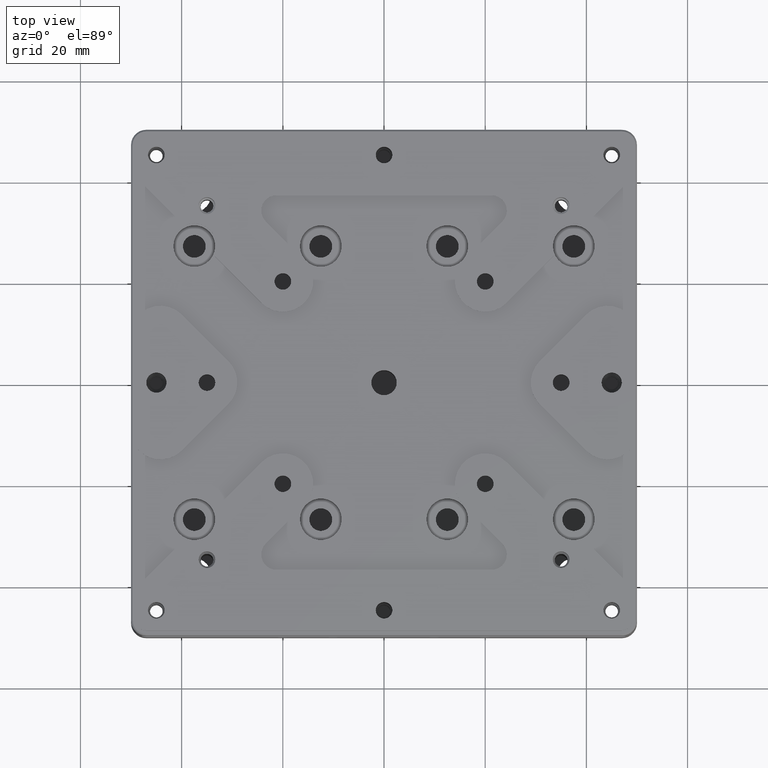
[diagram: clean part render]
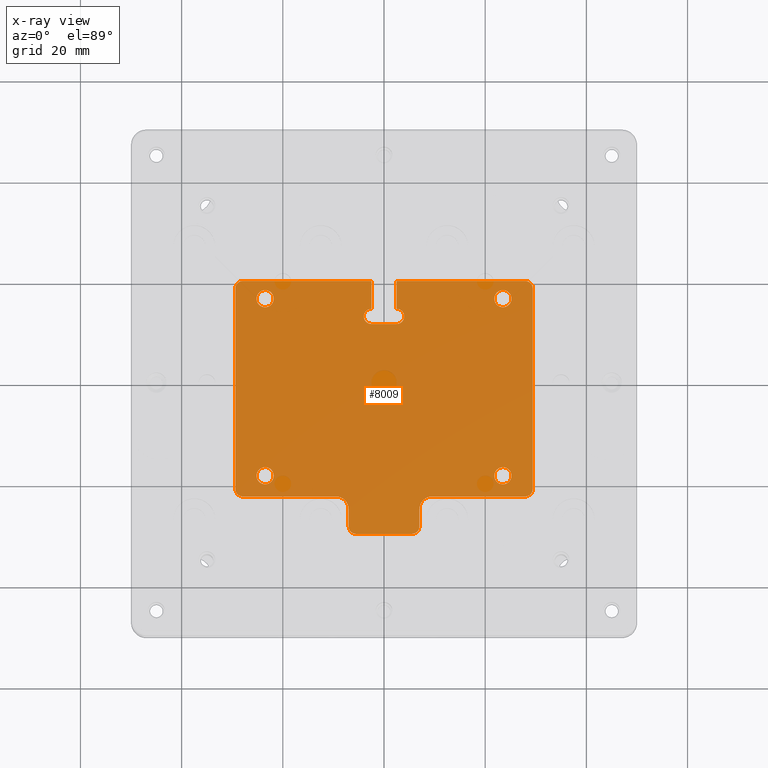
[diagram: x-ray — body ghosted, one internal face saturated and labeled with its STEP entity id]
A machine part, top view, then the same camera in x-ray: the body is ghosted and one INTERNAL B-rep face — a face not visible from any outside direction — is saturated and labeled: STEP entity #8009.
In plain terms, the highlighted planar face has unit normal (0, 0, -1).
Its self-contained STEP definition (entity closure, byte-faithful):
#79 = CARTESIAN_POINT ( 'NONE',  ( 6.999999999981446841, -24.60000000000000142, -8.299999999981446663 ) ) ;
#112 = EDGE_CURVE ( 'NONE', #6876, #781, #14528, .T. ) ;
#286 = CARTESIAN_POINT ( 'NONE',  ( -25.19999999999999929, -18.00000000000000355, -8.300000000000000711 ) ) ;
#388 = CARTESIAN_POINT ( 'NONE',  ( -2.500000000000000000, 13.50000000000000000, -8.300000000000000711 ) ) ;
#494 = DIRECTION ( 'NONE',  ( 1.000000000000000000, 0.000000000000000000, 0.000000000000000000 ) ) ;
#499 = ORIENTED_EDGE ( 'NONE', *, *, #7242, .F. ) ;
#528 = CIRCLE ( 'NONE', #8694, 1.700000000000000178 ) ;
#547 = CARTESIAN_POINT ( 'NONE',  ( 21.80000000000000071, -18.00000000000000355, -8.300000000000000711 ) ) ;
#628 = EDGE_LOOP ( 'NONE', ( #13713, #8756, #6700, #13582, #14121, #10174, #14075, #499, #6242, #8697, #4047, #5148, #10980, #4549, #1013, #16148, #15802, #1430, #13426, #14940, #13183, #3896 ) ) ;
#684 = CARTESIAN_POINT ( 'NONE',  ( 5.500000000000000000, -28.00000000000000000, -8.299999998314433469 ) ) ;
#716 = DIRECTION ( 'NONE',  ( -0.000000000000000000, -0.000000000000000000, 1.000000000000000000 ) ) ;
#718 = CARTESIAN_POINT ( 'NONE',  ( 29.39999999918731888, -20.59999999565999929, -8.299999998371276888 ) ) ;
#752 = VERTEX_POINT ( 'NONE', #3991 ) ;
#781 = VERTEX_POINT ( 'NONE', #1741 ) ;
#806 = CIRCLE ( 'NONE', #2114, 1.499999998336078777 ) ;
#822 = DIRECTION ( 'NONE',  ( 0.000000000000000000, 0.000000000000000000, -1.000000000000000000 ) ) ;
#872 = CARTESIAN_POINT ( 'NONE',  ( 23.50000000000000000, 17.00000000000000000, -8.300000000000000711 ) ) ;
#895 = LINE ( 'NONE', #4949, #15973 ) ;
#935 = DIRECTION ( 'NONE',  ( 0.000000000000000000, 0.000000000000000000, 1.000000000000000000 ) ) ;
#1013 = ORIENTED_EDGE ( 'NONE', *, *, #6994, .F. ) ;
#1027 = VECTOR ( 'NONE', #7517, 1000.000000000000000 ) ;
#1063 = DIRECTION ( 'NONE',  ( -1.000000000000000000, 0.000000000000000000, 0.000000000000000000 ) ) ;
#1139 = DIRECTION ( 'NONE',  ( -0.000000000000000000, -1.000000000000000000, -0.000000000000000000 ) ) ;
#1197 = CARTESIAN_POINT ( 'NONE',  ( 0.000000000000000000, 0.000000000000000000, -8.300000000000000711 ) ) ;
#1230 = ORIENTED_EDGE ( 'NONE', *, *, #6702, .F. ) ;
#1241 = CARTESIAN_POINT ( 'NONE',  ( 0.000000000000000000, -22.09999999840000129, -8.300000000000000711 ) ) ;
#1256 = AXIS2_PLACEMENT_3D ( 'NONE', #1197, #2274, #14775 ) ;
#1287 = VERTEX_POINT ( 'NONE', #2965 ) ;
#1295 = DIRECTION ( 'NONE',  ( 0.000000000000000000, -1.000000000000000000, -0.000000000000000000 ) ) ;
#1376 = DIRECTION ( 'NONE',  ( 1.000000000000000000, 0.000000000000000000, 0.000000000000000000 ) ) ;
#1430 = ORIENTED_EDGE ( 'NONE', *, *, #1790, .F. ) ;
#1447 = EDGE_CURVE ( 'NONE', #9719, #6866, #12214, .T. ) ;
#1465 = CARTESIAN_POINT ( 'NONE',  ( 0.000000000000000000, -22.10000000000000142, -8.300000000000000711 ) ) ;
#1481 = VECTOR ( 'NONE', #1295, 1000.000000000000000 ) ;
#1556 = VECTOR ( 'NONE', #7038, 1000.000000000000000 ) ;
#1575 = VERTEX_POINT ( 'NONE', #8907 ) ;
#1599 = EDGE_LOOP ( 'NONE', ( #5381 ) ) ;
#1614 = EDGE_CURVE ( 'NONE', #12957, #1575, #9670, .T. ) ;
#1658 = EDGE_CURVE ( 'NONE', #5837, #12142, #5354, .T. ) ;
#1728 = EDGE_CURVE ( 'NONE', #2789, #2789, #11784, .T. ) ;
#1741 = CARTESIAN_POINT ( 'NONE',  ( -7.000000001917206838, -24.59999998012499844, -8.300000002673368016 ) ) ;
#1777 = CARTESIAN_POINT ( 'NONE',  ( 21.80000000000000071, 17.00000000000000000, -8.300000000000000711 ) ) ;
#1790 = EDGE_CURVE ( 'NONE', #8691, #9719, #11798, .T. ) ;
#1933 = DIRECTION ( 'NONE',  ( 0.000000000000000000, 1.000000000000000000, 0.000000000000000000 ) ) ;
#1934 = VERTEX_POINT ( 'NONE', #4981 ) ;
#2012 = VECTOR ( 'NONE', #12542, 1000.000000000000000 ) ;
#2114 = AXIS2_PLACEMENT_3D ( 'NONE', #684, #5724, #14341 ) ;
#2224 = DIRECTION ( 'NONE',  ( -1.000000000000000000, 0.000000000000000000, -0.000000000000000000 ) ) ;
#2249 = CARTESIAN_POINT ( 'NONE',  ( -29.39999999925992213, -20.60000000000000142, -8.299999999261627792 ) ) ;
#2274 = DIRECTION ( 'NONE',  ( 0.000000000000000000, 0.000000000000000000, -1.000000000000000000 ) ) ;
#2297 = CARTESIAN_POINT ( 'NONE',  ( -5.500000000000000000, -28.00000000000000000, -8.300000000056570570 ) ) ;
#2313 = LINE ( 'NONE', #8518, #4934 ) ;
#2324 = VERTEX_POINT ( 'NONE', #79 ) ;
#2542 = LINE ( 'NONE', #1465, #9642 ) ;
#2688 = VERTEX_POINT ( 'NONE', #1777 ) ;
#2742 = VERTEX_POINT ( 'NONE', #286 ) ;
#2789 = VERTEX_POINT ( 'NONE', #5445 ) ;
#2862 = ORIENTED_EDGE ( 'NONE', *, *, #1728, .F. ) ;
#2872 = CARTESIAN_POINT ( 'NONE',  ( -23.50000000000000000, -18.00000000000000355, -8.300000000000000711 ) ) ;
#2949 = DIRECTION ( 'NONE',  ( 1.000000000000000000, 0.000000000000000000, 0.000000000000000000 ) ) ;
#2965 = CARTESIAN_POINT ( 'NONE',  ( -27.89999999999999858, 20.49999999916474280, -8.299999999204784373 ) ) ;
#3065 = AXIS2_PLACEMENT_3D ( 'NONE', #12345, #5734, #15828 ) ;
#3188 = CARTESIAN_POINT ( 'NONE',  ( -6.999999998396000400, 0.000000000000000000, -8.300000000000000711 ) ) ;
#3295 = VERTEX_POINT ( 'NONE', #8931 ) ;
#3309 = CIRCLE ( 'NONE', #8857, 1.700000000000000178 ) ;
#3368 = EDGE_CURVE ( 'NONE', #12142, #8452, #8787, .T. ) ;
#3377 = EDGE_CURVE ( 'NONE', #752, #2324, #4043, .T. ) ;
#3473 = EDGE_CURVE ( 'NONE', #5986, #1287, #3643, .T. ) ;
#3510 = DIRECTION ( 'NONE',  ( -0.000000000000000000, -0.000000000000000000, 1.000000000000000000 ) ) ;
#3526 = DIRECTION ( 'NONE',  ( -1.000000000000000000, 0.000000000000000000, 0.000000000000000000 ) ) ;
#3617 = CARTESIAN_POINT ( 'NONE',  ( -27.89999999999999858, 19.00000000000000000, -8.299999998371276888 ) ) ;
#3643 = CIRCLE ( 'NONE', #10778, 1.499999998310613147 ) ;
#3854 = VERTEX_POINT ( 'NONE', #13207 ) ;
#3896 = ORIENTED_EDGE ( 'NONE', *, *, #11252, .F. ) ;
#3950 = CARTESIAN_POINT ( 'NONE',  ( 29.39999999999999858, -0.8000000000000000444, -8.300000000000000711 ) ) ;
#3991 = CARTESIAN_POINT ( 'NONE',  ( 9.499999999999998224, -22.09999999917271651, -8.299999999962892616 ) ) ;
#4043 = CIRCLE ( 'NONE', #13553, 2.500000000018553159 ) ;
#4047 = ORIENTED_EDGE ( 'NONE', *, *, #3377, .F. ) ;
#4127 = CIRCLE ( 'NONE', #14423, 1.499999998374641708 ) ;
#4203 = DIRECTION ( 'NONE',  ( -0.000000000000000000, -0.000000000000000000, 1.000000000000000000 ) ) ;
#4374 = DIRECTION ( 'NONE',  ( 0.000000000000000000, 0.000000000000000000, -1.000000000000000000 ) ) ;
#4549 = ORIENTED_EDGE ( 'NONE', *, *, #1658, .F. ) ;
#4753 = EDGE_CURVE ( 'NONE', #12633, #12957, #895, .T. ) ;
#4792 = DIRECTION ( 'NONE',  ( -0.000000000000000000, -1.000000000000000000, -0.000000000000000000 ) ) ;
#4816 = DIRECTION ( 'NONE',  ( 1.000000000000000000, 0.000000000000000000, 0.000000000000000000 ) ) ;
#4867 = VERTEX_POINT ( 'NONE', #8583 ) ;
#4872 = CARTESIAN_POINT ( 'NONE',  ( 0.000000000000000000, 20.50000000000000000, -8.300000000000000711 ) ) ;
#4934 = VECTOR ( 'NONE', #2224, 1000.000000000000000 ) ;
#4949 = CARTESIAN_POINT ( 'NONE',  ( -2.500000000000000000, 0.000000000000000000, -8.300000000000000711 ) ) ;
#4981 = CARTESIAN_POINT ( 'NONE',  ( 6.999999999182000998, -27.99999999566000142, -8.299999999157217090 ) ) ;
#5148 = ORIENTED_EDGE ( 'NONE', *, *, #10310, .F. ) ;
#5245 = AXIS2_PLACEMENT_3D ( 'NONE', #6916, #14989, #4816 ) ;
#5354 = LINE ( 'NONE', #3950, #1481 ) ;
#5381 = ORIENTED_EDGE ( 'NONE', *, *, #6776, .F. ) ;
#5445 = CARTESIAN_POINT ( 'NONE',  ( -25.19999999999999929, 17.00000000000000000, -8.300000000000000711 ) ) ;
#5724 = DIRECTION ( 'NONE',  ( 0.000000000000000000, 0.000000000000000000, -1.000000000000000000 ) ) ;
#5734 = DIRECTION ( 'NONE',  ( -0.000000000000000000, -0.000000000000000000, 1.000000000000000000 ) ) ;
#5753 = DIRECTION ( 'NONE',  ( -1.000000000000000000, 0.000000000000000000, 0.000000000000000000 ) ) ;
#5759 = FACE_BOUND ( 'NONE', #15581, .T. ) ;
#5837 = VERTEX_POINT ( 'NONE', #8711 ) ;
#5879 = CARTESIAN_POINT ( 'NONE',  ( -29.39999999915530182, 18.99999999565999786, -8.299999998371276888 ) ) ;
#5986 = VERTEX_POINT ( 'NONE', #5879 ) ;
#6002 = CARTESIAN_POINT ( 'NONE',  ( -6.999999999226285574, -28.00000000467500172, -8.300000000056570570 ) ) ;
#6030 = CARTESIAN_POINT ( 'NONE',  ( 7.000000000000000000, 0.000000000000000000, -8.300000000000000711 ) ) ;
#6066 = CARTESIAN_POINT ( 'NONE',  ( -2.499999999999998224, 20.50000000000000000, -8.300000000000000711 ) ) ;
#6230 = AXIS2_PLACEMENT_3D ( 'NONE', #388, #7671, #1376 ) ;
#6242 = ORIENTED_EDGE ( 'NONE', *, *, #10043, .F. ) ;
#6246 = AXIS2_PLACEMENT_3D ( 'NONE', #872, #3510, #13606 ) ;
#6271 = DIRECTION ( 'NONE',  ( -1.000000000000000000, 0.000000000000000000, 0.000000000000000000 ) ) ;
#6277 = CIRCLE ( 'NONE', #5245, 2.500000000054569682 ) ;
#6278 = EDGE_LOOP ( 'NONE', ( #12760 ) ) ;
#6376 = LINE ( 'NONE', #1241, #10838 ) ;
#6437 = EDGE_CURVE ( 'NONE', #15128, #15880, #4127, .T. ) ;
#6700 = ORIENTED_EDGE ( 'NONE', *, *, #6437, .F. ) ;
#6702 = EDGE_CURVE ( 'NONE', #10547, #10547, #3309, .T. ) ;
#6776 = EDGE_CURVE ( 'NONE', #2688, #2688, #13373, .T. ) ;
#6866 = VERTEX_POINT ( 'NONE', #11199 ) ;
#6876 = VERTEX_POINT ( 'NONE', #6002 ) ;
#6909 = CARTESIAN_POINT ( 'NONE',  ( -29.39999999999999858, -0.8000000000000000444, -8.300000000000000711 ) ) ;
#6916 = CARTESIAN_POINT ( 'NONE',  ( -9.500000000000000000, -24.60000000000000142, -8.299999999926876981 ) ) ;
#6994 = EDGE_CURVE ( 'NONE', #16061, #5837, #12849, .T. ) ;
#7038 = DIRECTION ( 'NONE',  ( 1.000000000000000000, -0.000000000000000000, 0.000000000000000000 ) ) ;
#7065 = CARTESIAN_POINT ( 'NONE',  ( 27.89999999999999858, -22.09999999838731810, -8.299999998371276888 ) ) ;
#7242 = EDGE_CURVE ( 'NONE', #3854, #4867, #2313, .T. ) ;
#7433 = LINE ( 'NONE', #6030, #14805 ) ;
#7441 = LINE ( 'NONE', #8761, #1027 ) ;
#7517 = DIRECTION ( 'NONE',  ( 1.000000000000000000, -0.000000000000000000, 0.000000000000000000 ) ) ;
#7671 = DIRECTION ( 'NONE',  ( 0.000000000000000000, 0.000000000000000000, 1.000000000000000000 ) ) ;
#7726 = EDGE_CURVE ( 'NONE', #4867, #6876, #8902, .T. ) ;
#7882 = DIRECTION ( 'NONE',  ( -1.000000000000000000, 0.000000000000000000, 0.000000000000000000 ) ) ;
#7944 = DIRECTION ( 'NONE',  ( 0.000000000000000000, 0.000000000000000000, 1.000000000000000000 ) ) ;
#8009 = ADVANCED_FACE ( 'NONE', ( #11957, #5759, #10724, #10807, #9561 ), #14612, .F. ) ;
#8115 = AXIS2_PLACEMENT_3D ( 'NONE', #2297, #16038, #6271 ) ;
#8431 = VECTOR ( 'NONE', #11944, 1000.000000000000000 ) ;
#8452 = VERTEX_POINT ( 'NONE', #7065 ) ;
#8518 = CARTESIAN_POINT ( 'NONE',  ( 0.000000000000000000, -29.49999999839999987, -8.300000000000000711 ) ) ;
#8583 = CARTESIAN_POINT ( 'NONE',  ( -5.500000000000000000, -29.49999999923910821, -8.300000000056570570 ) ) ;
#8691 = VERTEX_POINT ( 'NONE', #11764 ) ;
#8694 = AXIS2_PLACEMENT_3D ( 'NONE', #2872, #4203, #15441 ) ;
#8697 = ORIENTED_EDGE ( 'NONE', *, *, #8949, .F. ) ;
#8711 = CARTESIAN_POINT ( 'NONE',  ( 29.39999999924571128, 19.00000000000000355, -8.299999999318471211 ) ) ;
#8756 = ORIENTED_EDGE ( 'NONE', *, *, #9605, .F. ) ;
#8761 = CARTESIAN_POINT ( 'NONE',  ( 0.000000000000000000, 12.00000000000000000, -8.300000000000000711 ) ) ;
#8787 = CIRCLE ( 'NONE', #10909, 1.499999998374641708 ) ;
#8857 = AXIS2_PLACEMENT_3D ( 'NONE', #14365, #716, #5753 ) ;
#8902 = CIRCLE ( 'NONE', #8115, 1.500000000021373125 ) ;
#8907 = CARTESIAN_POINT ( 'NONE',  ( -2.500000000000000000, 12.00000000000000000, -8.300000000000000711 ) ) ;
#8931 = CARTESIAN_POINT ( 'NONE',  ( -9.499999999999996447, -22.09999999996344044, -8.299999999963437958 ) ) ;
#8949 = EDGE_CURVE ( 'NONE', #2324, #1934, #7433, .T. ) ;
#8950 = CARTESIAN_POINT ( 'NONE',  ( 27.89999999999999858, 19.00000000000000000, -8.299999998484963726 ) ) ;
#9035 = CARTESIAN_POINT ( 'NONE',  ( 27.90000000467499675, 20.49999999919999993, -8.299999999242482218 ) ) ;
#9115 = DIRECTION ( 'NONE',  ( 0.000000000000000000, 0.000000000000000000, -1.000000000000000000 ) ) ;
#9232 = LINE ( 'NONE', #6909, #13494 ) ;
#9244 = CARTESIAN_POINT ( 'NONE',  ( 2.500000000000000000, 13.50000000000000000, -8.300000000000000711 ) ) ;
#9549 = LINE ( 'NONE', #14600, #8431 ) ;
#9561 = FACE_OUTER_BOUND ( 'NONE', #628, .T. ) ;
#9605 = EDGE_CURVE ( 'NONE', #15880, #5986, #9232, .T. ) ;
#9642 = VECTOR ( 'NONE', #12553, 1000.000000000000000 ) ;
#9670 = CIRCLE ( 'NONE', #6230, 1.500000000000000000 ) ;
#9675 = EDGE_CURVE ( 'NONE', #6866, #16061, #9549, .T. ) ;
#9719 = VERTEX_POINT ( 'NONE', #12190 ) ;
#9949 = AXIS2_PLACEMENT_3D ( 'NONE', #9244, #935, #2949 ) ;
#10043 = EDGE_CURVE ( 'NONE', #1934, #3854, #806, .T. ) ;
#10174 = ORIENTED_EDGE ( 'NONE', *, *, #112, .F. ) ;
#10310 = EDGE_CURVE ( 'NONE', #8452, #752, #6376, .T. ) ;
#10547 = VERTEX_POINT ( 'NONE', #547 ) ;
#10548 = DIRECTION ( 'NONE',  ( 0.000000000000000000, 1.000000000000000000, -0.000000000000000000 ) ) ;
#10652 = CARTESIAN_POINT ( 'NONE',  ( 27.89999999999999858, -20.60000000000000142, -8.299999998371276888 ) ) ;
#10724 = FACE_BOUND ( 'NONE', #6278, .T. ) ;
#10778 = AXIS2_PLACEMENT_3D ( 'NONE', #3617, #822, #1063 ) ;
#10801 = EDGE_CURVE ( 'NONE', #781, #3295, #6277, .T. ) ;
#10807 = FACE_BOUND ( 'NONE', #1599, .T. ) ;
#10838 = VECTOR ( 'NONE', #16309, 1000.000000000000000 ) ;
#10909 = AXIS2_PLACEMENT_3D ( 'NONE', #10652, #4374, #15789 ) ;
#10980 = ORIENTED_EDGE ( 'NONE', *, *, #3368, .F. ) ;
#11021 = EDGE_LOOP ( 'NONE', ( #1230 ) ) ;
#11199 = CARTESIAN_POINT ( 'NONE',  ( 2.499999999999998224, 20.50000000000000000, -8.300000000000000711 ) ) ;
#11252 = EDGE_CURVE ( 'NONE', #1287, #12633, #12236, .T. ) ;
#11486 = EDGE_CURVE ( 'NONE', #1575, #8691, #7441, .T. ) ;
#11764 = CARTESIAN_POINT ( 'NONE',  ( 2.499999999999999556, 12.00000000000000000, -8.300000000000000711 ) ) ;
#11784 = CIRCLE ( 'NONE', #3065, 1.700000000000000178 ) ;
#11798 = CIRCLE ( 'NONE', #9949, 1.500000000000000000 ) ;
#11944 = DIRECTION ( 'NONE',  ( 1.000000000000000000, -0.000000000000000000, 0.000000000000000000 ) ) ;
#11957 = FACE_BOUND ( 'NONE', #11021, .T. ) ;
#11970 = CARTESIAN_POINT ( 'NONE',  ( 9.500000000000000000, -24.60000000000000142, -8.299999999962892616 ) ) ;
#12065 = CARTESIAN_POINT ( 'NONE',  ( -2.500000000000000000, 15.00000000000000000, -8.300000000000000711 ) ) ;
#12142 = VERTEX_POINT ( 'NONE', #718 ) ;
#12190 = CARTESIAN_POINT ( 'NONE',  ( 2.500000000000000000, 15.00000000000000000, -8.300000000000000711 ) ) ;
#12214 = LINE ( 'NONE', #13538, #2012 ) ;
#12236 = LINE ( 'NONE', #4872, #1556 ) ;
#12345 = CARTESIAN_POINT ( 'NONE',  ( -23.50000000000000000, 17.00000000000000000, -8.300000000000000711 ) ) ;
#12542 = DIRECTION ( 'NONE',  ( 0.000000000000000000, 1.000000000000000000, 0.000000000000000000 ) ) ;
#12553 = DIRECTION ( 'NONE',  ( -1.000000000000000000, 0.000000000000000000, -0.000000000000000000 ) ) ;
#12633 = VERTEX_POINT ( 'NONE', #6066 ) ;
#12760 = ORIENTED_EDGE ( 'NONE', *, *, #15117, .F. ) ;
#12849 = CIRCLE ( 'NONE', #16013, 1.499999998367456566 ) ;
#12957 = VERTEX_POINT ( 'NONE', #12065 ) ;
#12967 = CARTESIAN_POINT ( 'NONE',  ( -27.90000000467499675, -22.09999999920000135, -8.299999999185638799 ) ) ;
#12992 = EDGE_CURVE ( 'NONE', #3295, #15128, #2542, .T. ) ;
#13183 = ORIENTED_EDGE ( 'NONE', *, *, #4753, .F. ) ;
#13207 = CARTESIAN_POINT ( 'NONE',  ( 5.500000004675500875, -29.49999999859999988, -8.299999998957215297 ) ) ;
#13373 = CIRCLE ( 'NONE', #6246, 1.700000000000000178 ) ;
#13426 = ORIENTED_EDGE ( 'NONE', *, *, #11486, .F. ) ;
#13494 = VECTOR ( 'NONE', #10548, 1000.000000000000000 ) ;
#13538 = CARTESIAN_POINT ( 'NONE',  ( 2.500000000000000000, 0.000000000000000000, -8.300000000000000711 ) ) ;
#13542 = DIRECTION ( 'NONE',  ( 0.000000000000000000, 0.000000000000000000, -1.000000000000000000 ) ) ;
#13553 = AXIS2_PLACEMENT_3D ( 'NONE', #11970, #7944, #494 ) ;
#13582 = ORIENTED_EDGE ( 'NONE', *, *, #12992, .F. ) ;
#13606 = DIRECTION ( 'NONE',  ( -1.000000000000000000, 0.000000000000000000, 0.000000000000000000 ) ) ;
#13713 = ORIENTED_EDGE ( 'NONE', *, *, #3473, .F. ) ;
#14075 = ORIENTED_EDGE ( 'NONE', *, *, #7726, .F. ) ;
#14121 = ORIENTED_EDGE ( 'NONE', *, *, #10801, .F. ) ;
#14341 = DIRECTION ( 'NONE',  ( -1.000000000000000000, 0.000000000000000000, 0.000000000000000000 ) ) ;
#14365 = CARTESIAN_POINT ( 'NONE',  ( 23.50000000000000000, -18.00000000000000355, -8.300000000000000711 ) ) ;
#14423 = AXIS2_PLACEMENT_3D ( 'NONE', #16033, #13542, #3526 ) ;
#14528 = LINE ( 'NONE', #3188, #15204 ) ;
#14600 = CARTESIAN_POINT ( 'NONE',  ( 0.000000000000000000, 20.50000000000000000, -8.300000000000000711 ) ) ;
#14612 = PLANE ( 'NONE',  #1256 ) ;
#14775 = DIRECTION ( 'NONE',  ( -1.000000000000000000, 0.000000000000000000, -0.000000000000000000 ) ) ;
#14805 = VECTOR ( 'NONE', #4792, 1000.000000000000000 ) ;
#14940 = ORIENTED_EDGE ( 'NONE', *, *, #1614, .F. ) ;
#14989 = DIRECTION ( 'NONE',  ( 0.000000000000000000, 0.000000000000000000, 1.000000000000000000 ) ) ;
#15117 = EDGE_CURVE ( 'NONE', #2742, #2742, #528, .T. ) ;
#15128 = VERTEX_POINT ( 'NONE', #12967 ) ;
#15204 = VECTOR ( 'NONE', #1933, 1000.000000000000000 ) ;
#15441 = DIRECTION ( 'NONE',  ( -1.000000000000000000, 0.000000000000000000, 0.000000000000000000 ) ) ;
#15581 = EDGE_LOOP ( 'NONE', ( #2862 ) ) ;
#15789 = DIRECTION ( 'NONE',  ( -1.000000000000000000, 0.000000000000000000, 0.000000000000000000 ) ) ;
#15802 = ORIENTED_EDGE ( 'NONE', *, *, #1447, .F. ) ;
#15828 = DIRECTION ( 'NONE',  ( -1.000000000000000000, 0.000000000000000000, 0.000000000000000000 ) ) ;
#15880 = VERTEX_POINT ( 'NONE', #2249 ) ;
#15973 = VECTOR ( 'NONE', #1139, 1000.000000000000000 ) ;
#16013 = AXIS2_PLACEMENT_3D ( 'NONE', #8950, #9115, #7882 ) ;
#16033 = CARTESIAN_POINT ( 'NONE',  ( -27.89999999999999858, -20.60000000000000142, -8.299999998371276888 ) ) ;
#16038 = DIRECTION ( 'NONE',  ( 0.000000000000000000, 0.000000000000000000, -1.000000000000000000 ) ) ;
#16061 = VERTEX_POINT ( 'NONE', #9035 ) ;
#16148 = ORIENTED_EDGE ( 'NONE', *, *, #9675, .F. ) ;
#16309 = DIRECTION ( 'NONE',  ( -1.000000000000000000, 0.000000000000000000, -0.000000000000000000 ) ) ;